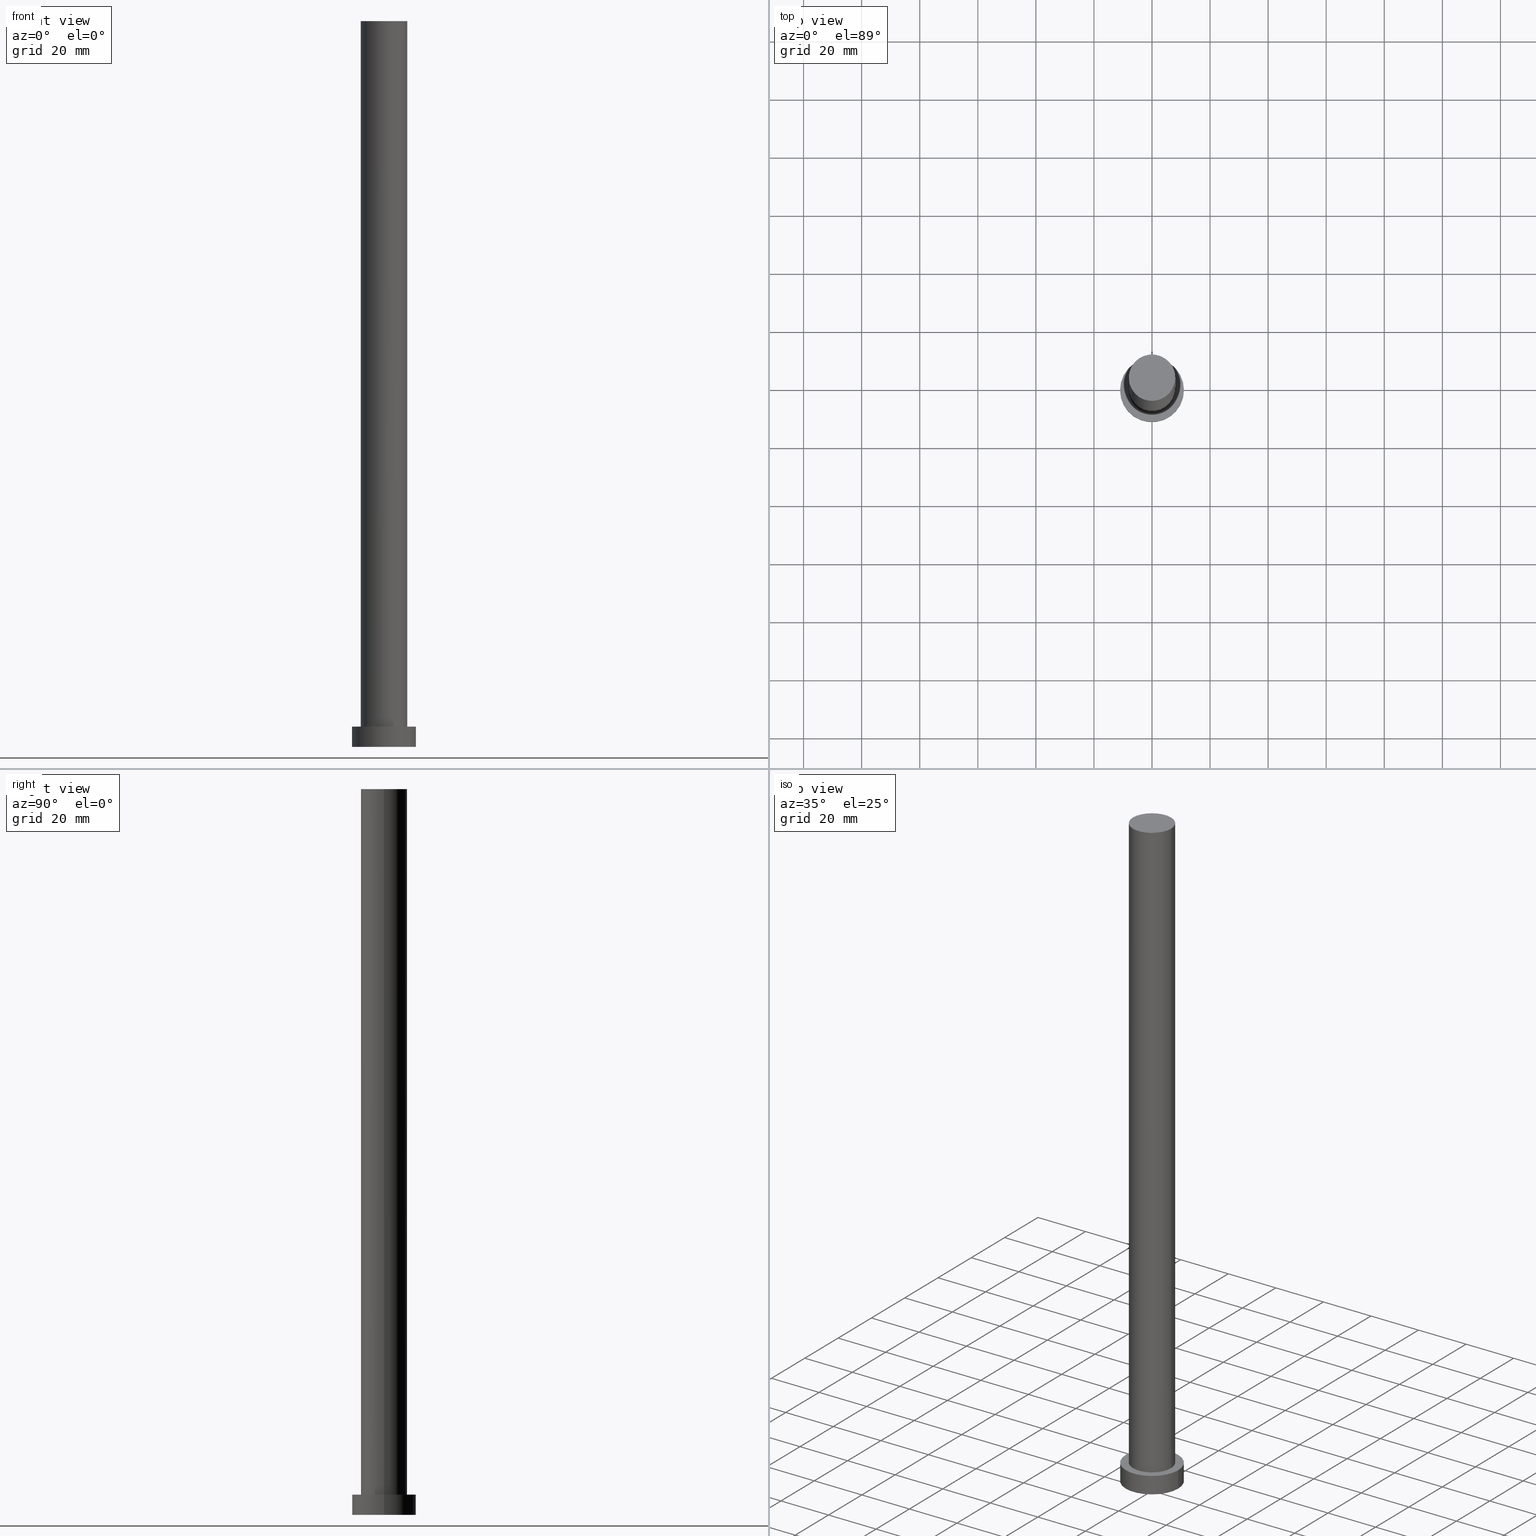
[diagram: canonical four-view strip — front | top / right | iso, engineering-drawing reading convention]
A machine part, canonical four-view strip (front | top / right | iso — engineering-drawing reading convention). The complete STEP part file that produces these views, byte-faithful:
ISO-10303-21;
HEADER;
FILE_DESCRIPTION (( 'STEP AP203' ),
    '1' );
FILE_NAME ('9fd9.STEP',
    '2023-02-13T09:46:42',
    ( '' ),
    ( '' ),
    'SwSTEP 2.0',
    'SolidWorks 2019',
    '' );
FILE_SCHEMA (( 'CONFIG_CONTROL_DESIGN' ));
ENDSEC;

DATA;
#1 = AXIS2_PLACEMENT_3D ( 'NONE', #224, #156, #229 ) ;
#2 = EDGE_CURVE ( 'NONE', #60, #253, #199, .T. ) ;
#3 = ORIENTED_EDGE ( 'NONE', *, *, #142, .F. ) ;
#4 = DIRECTION ( 'NONE',  ( -0.000000000000000000, -0.000000000000000000, -1.000000000000000000 ) ) ;
#5 = CARTESIAN_POINT ( 'NONE',  ( -8.000000000000000000, 0.000000000000000000, 250.0000000000000000 ) ) ;
#6 = CYLINDRICAL_SURFACE ( 'NONE', #173, 11.00000000000000000 ) ;
#7 = PERSON_AND_ORGANIZATION_ROLE ( 'classification_officer' ) ;
#8 = DIRECTION ( 'NONE',  ( 0.000000000000000000, 0.000000000000000000, 1.000000000000000000 ) ) ;
#9 = CIRCLE ( 'NONE', #163, 8.000000000000000000 ) ;
#10 = CARTESIAN_POINT ( 'NONE',  ( 0.000000000000000000, 0.000000000000000000, 7.000000000000000000 ) ) ;
#11 = CC_DESIGN_DATE_AND_TIME_ASSIGNMENT ( #215, #195, ( #19 ) ) ;
#12 = AXIS2_PLACEMENT_3D ( 'NONE', #73, #13, #93 ) ;
#13 = DIRECTION ( 'NONE',  ( -0.000000000000000000, -0.000000000000000000, -1.000000000000000000 ) ) ;
#14 = PERSON_AND_ORGANIZATION ( #255, #113 ) ;
#15 = ADVANCED_FACE ( 'NONE', ( #84 ), #82, .T. ) ;
#16 = APPROVAL_DATE_TIME ( #121, #112 ) ;
#17 = DIRECTION ( 'NONE',  ( -1.000000000000000000, 0.000000000000000000, 0.000000000000000000 ) ) ;
#18 = DATE_TIME_ROLE ( 'creation_date' ) ;
#19 = SECURITY_CLASSIFICATION ( '', '', #183 ) ;
#20 = ORIENTED_EDGE ( 'NONE', *, *, #170, .F. ) ;
#21 = CC_DESIGN_PERSON_AND_ORGANIZATION_ASSIGNMENT ( #137, #40, ( #133 ) ) ;
#22 = ORIENTED_EDGE ( 'NONE', *, *, #47, .T. ) ;
#23 = CARTESIAN_POINT ( 'NONE',  ( 0.000000000000000000, 0.000000000000000000, 0.000000000000000000 ) ) ;
#24 = CIRCLE ( 'NONE', #168, 11.00000000000000000 ) ;
#25 = EDGE_LOOP ( 'NONE', ( #38, #58, #162, #101 ) ) ;
#26 = DATE_AND_TIME ( #83, #74 ) ;
#27 = CARTESIAN_POINT ( 'NONE',  ( 0.000000000000000000, 0.000000000000000000, 250.0000000000000000 ) ) ;
#28 = EDGE_CURVE ( 'NONE', #105, #124, #9, .T. ) ;
#29 = CARTESIAN_POINT ( 'NONE',  ( 0.000000000000000000, 0.000000000000000000, 250.0000000000000000 ) ) ;
#30 = ORIENTED_EDGE ( 'NONE', *, *, #80, .T. ) ;
#31 = DIRECTION ( 'NONE',  ( 1.000000000000000000, 0.000000000000000000, 0.000000000000000000 ) ) ;
#32 = PRODUCT_DEFINITION_FORMATION_WITH_SPECIFIED_SOURCE ( 'LIBOVOLN�', '', #133, .NOT_KNOWN. ) ;
#33 = PLANE ( 'NONE',  #79 ) ;
#34 =( GEOMETRIC_REPRESENTATION_CONTEXT ( 3 ) GLOBAL_UNCERTAINTY_ASSIGNED_CONTEXT ( ( #44 ) ) GLOBAL_UNIT_ASSIGNED_CONTEXT ( ( #67, #72, #192 ) ) REPRESENTATION_CONTEXT ( 'NONE', 'WORKASPACE' ) );
#35 = FACE_OUTER_BOUND ( 'NONE', #61, .T. ) ;
#36 = PRODUCT_RELATED_PRODUCT_CATEGORY ( 'detail', '', ( #133 ) ) ;
#37 = APPROVAL_ROLE ( '' ) ;
#38 = ORIENTED_EDGE ( 'NONE', *, *, #96, .F. ) ;
#39 = DESIGN_CONTEXT ( 'detailed design', #205, 'design' ) ;
#40 = PERSON_AND_ORGANIZATION_ROLE ( 'design_owner' ) ;
#41 = VERTEX_POINT ( 'NONE', #178 ) ;
#42 = ORIENTED_EDGE ( 'NONE', *, *, #172, .F. ) ;
#43 = EDGE_LOOP ( 'NONE', ( #160, #140 ) ) ;
#44 = UNCERTAINTY_MEASURE_WITH_UNIT (LENGTH_MEASURE( 1.000000000000000082E-05 ), #67, 'distance_accuracy_value', 'NONE');
#45 = CARTESIAN_POINT ( 'NONE',  ( -8.000000000000000000, 0.000000000000000000, 250.0000000000000000 ) ) ;
#46 = CARTESIAN_POINT ( 'NONE',  ( 0.000000000000000000, 0.000000000000000000, 250.0000000000000000 ) ) ;
#47 = EDGE_CURVE ( 'NONE', #131, #60, #24, .T. ) ;
#48 = DIRECTION ( 'NONE',  ( -0.000000000000000000, -0.000000000000000000, -1.000000000000000000 ) ) ;
#49 = AXIS2_PLACEMENT_3D ( 'NONE', #29, #128, #197 ) ;
#50 = CARTESIAN_POINT ( 'NONE',  ( 11.00000000000000000, 1.347111479062088405E-15, 7.000000000000000000 ) ) ;
#51 = EDGE_CURVE ( 'NONE', #41, #100, #59, .T. ) ;
#52 = LOCAL_TIME ( 10, 46, 42.00000000000000000, #129 ) ;
#53 = CARTESIAN_POINT ( 'NONE',  ( -11.00000000000000000, 0.000000000000000000, 0.000000000000000000 ) ) ;
#54 = PRODUCT_DEFINITION ( 'NEZN�M�', '', #32, #39 ) ;
#55 = DIRECTION ( 'NONE',  ( 1.000000000000000000, 0.000000000000000000, 0.000000000000000000 ) ) ;
#56 = APPLICATION_PROTOCOL_DEFINITION ( 'international standard', 'config_control_design', 1994, #90 ) ;
#57 = CALENDAR_DATE ( 2023, 13, 2 ) ;
#58 = ORIENTED_EDGE ( 'NONE', *, *, #28, .F. ) ;
#59 = CIRCLE ( 'NONE', #193, 8.000000000000000000 ) ;
#60 = VERTEX_POINT ( 'NONE', #66 ) ;
#61 = EDGE_LOOP ( 'NONE', ( #78, #22 ) ) ;
#62 = CC_DESIGN_APPROVAL ( #161, ( #32 ) ) ;
#63 = ORIENTED_EDGE ( 'NONE', *, *, #91, .F. ) ;
#64 = CARTESIAN_POINT ( 'NONE',  ( 0.000000000000000000, 0.000000000000000000, 0.000000000000000000 ) ) ;
#65 = CC_DESIGN_PERSON_AND_ORGANIZATION_ASSIGNMENT ( #201, #241, ( #32 ) ) ;
#66 = CARTESIAN_POINT ( 'NONE',  ( -11.00000000000000000, 0.000000000000000000, 7.000000000000000000 ) ) ;
#67 =( LENGTH_UNIT ( ) NAMED_UNIT ( * ) SI_UNIT ( .MILLI., .METRE. ) );
#68 = DIRECTION ( 'NONE',  ( 0.000000000000000000, 0.000000000000000000, 1.000000000000000000 ) ) ;
#69 = CALENDAR_DATE ( 2023, 13, 2 ) ;
#70 = CARTESIAN_POINT ( 'NONE',  ( 0.000000000000000000, 0.000000000000000000, 7.000000000000000000 ) ) ;
#71 = FACE_OUTER_BOUND ( 'NONE', #244, .T. ) ;
#72 =( NAMED_UNIT ( * ) PLANE_ANGLE_UNIT ( ) SI_UNIT ( $, .RADIAN. ) );
#73 = CARTESIAN_POINT ( 'NONE',  ( 0.000000000000000000, 0.000000000000000000, 250.0000000000000000 ) ) ;
#74 = LOCAL_TIME ( 10, 46, 42.00000000000000000, #81 ) ;
#75 = AXIS2_PLACEMENT_3D ( 'NONE', #23, #186, #55 ) ;
#76 = CALENDAR_DATE ( 2023, 13, 2 ) ;
#77 = EDGE_LOOP ( 'NONE', ( #42, #20 ) ) ;
#78 = ORIENTED_EDGE ( 'NONE', *, *, #165, .T. ) ;
#79 = AXIS2_PLACEMENT_3D ( 'NONE', #248, #89, #231 ) ;
#80 = EDGE_CURVE ( 'NONE', #124, #105, #176, .T. ) ;
#81 = COORDINATED_UNIVERSAL_TIME_OFFSET ( 1, 0, .AHEAD. ) ;
#82 = PLANE ( 'NONE',  #49 ) ;
#83 = CALENDAR_DATE ( 2023, 13, 2 ) ;
#84 = FACE_OUTER_BOUND ( 'NONE', #213, .T. ) ;
#85 = APPROVAL_DATE_TIME ( #141, #161 ) ;
#86 = AXIS2_PLACEMENT_3D ( 'NONE', #184, #68, #171 ) ;
#87 = DIRECTION ( 'NONE',  ( 1.000000000000000000, 0.000000000000000000, 0.000000000000000000 ) ) ;
#88 = CARTESIAN_POINT ( 'NONE',  ( 0.000000000000000000, 0.000000000000000000, 0.000000000000000000 ) ) ;
#89 = DIRECTION ( 'NONE',  ( 0.000000000000000000, 0.000000000000000000, 1.000000000000000000 ) ) ;
#90 = APPLICATION_CONTEXT ( 'configuration controlled 3d designs of mechanical parts and assemblies' ) ;
#91 = EDGE_CURVE ( 'NONE', #131, #143, #182, .T. ) ;
#92 = VECTOR ( 'NONE', #153, 1000.000000000000000 ) ;
#93 = DIRECTION ( 'NONE',  ( -1.000000000000000000, 0.000000000000000000, 0.000000000000000000 ) ) ;
#94 = CARTESIAN_POINT ( 'NONE',  ( 0.000000000000000000, 0.000000000000000000, 7.000000000000000000 ) ) ;
#95 = PERSON_AND_ORGANIZATION_ROLE ( 'creator' ) ;
#96 = EDGE_CURVE ( 'NONE', #124, #41, #109, .T. ) ;
#97 = CIRCLE ( 'NONE', #237, 11.00000000000000000 ) ;
#98 = APPROVAL_ROLE ( '' ) ;
#99 = EDGE_LOOP ( 'NONE', ( #175, #236, #158, #3 ) ) ;
#100 = VERTEX_POINT ( 'NONE', #181 ) ;
#101 = ORIENTED_EDGE ( 'NONE', *, *, #208, .T. ) ;
#102 = APPROVAL_PERSON_ORGANIZATION ( #122, #161, #98 ) ;
#103 = ORIENTED_EDGE ( 'NONE', *, *, #170, .T. ) ;
#104 = PERSON_AND_ORGANIZATION ( #255, #113 ) ;
#105 = VERTEX_POINT ( 'NONE', #5 ) ;
#106 = ADVANCED_FACE ( 'NONE', ( #239 ), #6, .T. ) ;
#107 = DIRECTION ( 'NONE',  ( 1.000000000000000000, 0.000000000000000000, 0.000000000000000000 ) ) ;
#108 = CC_DESIGN_SECURITY_CLASSIFICATION ( #19, ( #32 ) ) ;
#109 = LINE ( 'NONE', #114, #202 ) ;
#110 = DIRECTION ( 'NONE',  ( -0.000000000000000000, -0.000000000000000000, -1.000000000000000000 ) ) ;
#111 = DIRECTION ( 'NONE',  ( 0.000000000000000000, 0.000000000000000000, 1.000000000000000000 ) ) ;
#112 = APPROVAL ( #119, 'NEUR�EN�' ) ;
#113 = ORGANIZATION ( 'NEUR�EN�', 'NEUR�EN�', '' ) ;
#114 = CARTESIAN_POINT ( 'NONE',  ( 8.000000000000000000, 9.797174393178825657E-16, 250.0000000000000000 ) ) ;
#115 = DIRECTION ( 'NONE',  ( 1.000000000000000000, 0.000000000000000000, 0.000000000000000000 ) ) ;
#116 = VECTOR ( 'NONE', #110, 1000.000000000000000 ) ;
#117 = APPLICATION_PROTOCOL_DEFINITION ( 'international standard', 'config_control_design', 1994, #205 ) ;
#118 = CYLINDRICAL_SURFACE ( 'NONE', #185, 11.00000000000000000 ) ;
#119 = APPROVAL_STATUS ( 'not_yet_approved' ) ;
#120 = FACE_BOUND ( 'NONE', #43, .T. ) ;
#121 = DATE_AND_TIME ( #139, #150 ) ;
#122 = PERSON_AND_ORGANIZATION ( #255, #113 ) ;
#123 = ORIENTED_EDGE ( 'NONE', *, *, #2, .F. ) ;
#124 = VERTEX_POINT ( 'NONE', #167 ) ;
#125 = ORIENTED_EDGE ( 'NONE', *, *, #91, .T. ) ;
#126 = CC_DESIGN_DATE_AND_TIME_ASSIGNMENT ( #157, #18, ( #54 ) ) ;
#127 = DIRECTION ( 'NONE',  ( 1.000000000000000000, 0.000000000000000000, 0.000000000000000000 ) ) ;
#128 = DIRECTION ( 'NONE',  ( 0.000000000000000000, 0.000000000000000000, 1.000000000000000000 ) ) ;
#129 = COORDINATED_UNIVERSAL_TIME_OFFSET ( 1, 0, .AHEAD. ) ;
#130 = AXIS2_PLACEMENT_3D ( 'NONE', #155, #135, #115 ) ;
#131 = VERTEX_POINT ( 'NONE', #50 ) ;
#132 = DIRECTION ( 'NONE',  ( 0.000000000000000000, 0.000000000000000000, 1.000000000000000000 ) ) ;
#133 = PRODUCT ( '9fd9', '9fd9', '', ( #210 ) ) ;
#134 = APPROVAL_PERSON_ORGANIZATION ( #14, #112, #37 ) ;
#135 = DIRECTION ( 'NONE',  ( 0.000000000000000000, 0.000000000000000000, 1.000000000000000000 ) ) ;
#136 = MANIFOLD_SOLID_BREP ( 'P�idat vysunut�m3', #146 ) ;
#137 = PERSON_AND_ORGANIZATION ( #255, #113 ) ;
#138 = CC_DESIGN_PERSON_AND_ORGANIZATION_ASSIGNMENT ( #189, #95, ( #54 ) ) ;
#139 = CALENDAR_DATE ( 2023, 13, 2 ) ;
#140 = ORIENTED_EDGE ( 'NONE', *, *, #51, .F. ) ;
#141 = DATE_AND_TIME ( #57, #242 ) ;
#142 = EDGE_CURVE ( 'NONE', #105, #100, #216, .T. ) ;
#143 = VERTEX_POINT ( 'NONE', #240 ) ;
#144 = PRODUCT_DEFINITION_SHAPE ( 'NONE', 'NONE',  #54 ) ;
#145 = ORIENTED_EDGE ( 'NONE', *, *, #165, .F. ) ;
#146 = CLOSED_SHELL ( 'NONE', ( #180, #228, #106, #222, #211, #235, #15 ) ) ;
#147 = DIRECTION ( 'NONE',  ( 0.000000000000000000, 0.000000000000000000, 1.000000000000000000 ) ) ;
#148 = CYLINDRICAL_SURFACE ( 'NONE', #12, 8.000000000000000000 ) ;
#149 = DIRECTION ( 'NONE',  ( 1.000000000000000000, 0.000000000000000000, 0.000000000000000000 ) ) ;
#150 = LOCAL_TIME ( 10, 46, 42.00000000000000000, #187 ) ;
#151 = DIRECTION ( 'NONE',  ( 0.000000000000000000, 0.000000000000000000, 1.000000000000000000 ) ) ;
#152 = APPROVAL_ROLE ( '' ) ;
#153 = DIRECTION ( 'NONE',  ( -0.000000000000000000, -0.000000000000000000, -1.000000000000000000 ) ) ;
#154 = CYLINDRICAL_SURFACE ( 'NONE', #1, 8.000000000000000000 ) ;
#155 = CARTESIAN_POINT ( 'NONE',  ( 0.000000000000000000, 0.000000000000000000, 7.000000000000000000 ) ) ;
#156 = DIRECTION ( 'NONE',  ( -0.000000000000000000, -0.000000000000000000, -1.000000000000000000 ) ) ;
#157 = DATE_AND_TIME ( #76, #247 ) ;
#158 = ORIENTED_EDGE ( 'NONE', *, *, #51, .T. ) ;
#159 = CIRCLE ( 'NONE', #130, 8.000000000000000000 ) ;
#160 = ORIENTED_EDGE ( 'NONE', *, *, #208, .F. ) ;
#161 = APPROVAL ( #232, 'NEUR�EN�' ) ;
#162 = ORIENTED_EDGE ( 'NONE', *, *, #142, .T. ) ;
#163 = AXIS2_PLACEMENT_3D ( 'NONE', #27, #8, #107 ) ;
#164 = DIRECTION ( 'NONE',  ( 0.000000000000000000, 0.000000000000000000, 1.000000000000000000 ) ) ;
#165 = EDGE_CURVE ( 'NONE', #60, #131, #226, .T. ) ;
#166 = PERSON_AND_ORGANIZATION ( #255, #113 ) ;
#167 = CARTESIAN_POINT ( 'NONE',  ( 8.000000000000000000, 9.797174393178825657E-16, 250.0000000000000000 ) ) ;
#168 = AXIS2_PLACEMENT_3D ( 'NONE', #200, #147, #87 ) ;
#169 = DIRECTION ( 'NONE',  ( -0.000000000000000000, -0.000000000000000000, -1.000000000000000000 ) ) ;
#170 = EDGE_CURVE ( 'NONE', #143, #253, #97, .T. ) ;
#171 = DIRECTION ( 'NONE',  ( 1.000000000000000000, 0.000000000000000000, 0.000000000000000000 ) ) ;
#172 = EDGE_CURVE ( 'NONE', #253, #143, #251, .T. ) ;
#173 = AXIS2_PLACEMENT_3D ( 'NONE', #70, #48, #220 ) ;
#174 = COORDINATED_UNIVERSAL_TIME_OFFSET ( 1, 0, .AHEAD. ) ;
#175 = ORIENTED_EDGE ( 'NONE', *, *, #80, .F. ) ;
#176 = CIRCLE ( 'NONE', #198, 8.000000000000000000 ) ;
#177 = ORIENTED_EDGE ( 'NONE', *, *, #47, .F. ) ;
#178 = CARTESIAN_POINT ( 'NONE',  ( 8.000000000000000000, 9.797174393178825657E-16, 7.000000000000000000 ) ) ;
#179 = VECTOR ( 'NONE', #4, 1000.000000000000000 ) ;
#180 = ADVANCED_FACE ( 'NONE', ( #194 ), #148, .T. ) ;
#181 = CARTESIAN_POINT ( 'NONE',  ( -8.000000000000000000, 0.000000000000000000, 7.000000000000000000 ) ) ;
#182 = LINE ( 'NONE', #218, #116 ) ;
#183 = SECURITY_CLASSIFICATION_LEVEL ( 'unclassified' ) ;
#184 = CARTESIAN_POINT ( 'NONE',  ( 0.000000000000000000, 0.000000000000000000, 7.000000000000000000 ) ) ;
#185 = AXIS2_PLACEMENT_3D ( 'NONE', #94, #188, #17 ) ;
#186 = DIRECTION ( 'NONE',  ( 0.000000000000000000, 0.000000000000000000, 1.000000000000000000 ) ) ;
#187 = COORDINATED_UNIVERSAL_TIME_OFFSET ( 1, 0, .AHEAD. ) ;
#188 = DIRECTION ( 'NONE',  ( -0.000000000000000000, -0.000000000000000000, -1.000000000000000000 ) ) ;
#189 = PERSON_AND_ORGANIZATION ( #255, #113 ) ;
#190 = APPROVAL_PERSON_ORGANIZATION ( #166, #246, #152 ) ;
#191 = ORIENTED_EDGE ( 'NONE', *, *, #172, .T. ) ;
#192 =( NAMED_UNIT ( * ) SI_UNIT ( $, .STERADIAN. ) SOLID_ANGLE_UNIT ( ) );
#193 = AXIS2_PLACEMENT_3D ( 'NONE', #10, #164, #217 ) ;
#194 = FACE_OUTER_BOUND ( 'NONE', #99, .T. ) ;
#195 = DATE_TIME_ROLE ( 'classification_date' ) ;
#196 = CC_DESIGN_PERSON_AND_ORGANIZATION_ASSIGNMENT ( #225, #221, ( #32 ) ) ;
#197 = DIRECTION ( 'NONE',  ( 1.000000000000000000, 0.000000000000000000, -0.000000000000000000 ) ) ;
#198 = AXIS2_PLACEMENT_3D ( 'NONE', #46, #111, #149 ) ;
#199 = LINE ( 'NONE', #223, #179 ) ;
#200 = CARTESIAN_POINT ( 'NONE',  ( 0.000000000000000000, 0.000000000000000000, 7.000000000000000000 ) ) ;
#201 = PERSON_AND_ORGANIZATION ( #255, #113 ) ;
#202 = VECTOR ( 'NONE', #169, 1000.000000000000000 ) ;
#203 = DIRECTION ( 'NONE',  ( 0.000000000000000000, 0.000000000000000000, 1.000000000000000000 ) ) ;
#204 = ADVANCED_BREP_SHAPE_REPRESENTATION ( '9fd9', ( #136, #75 ), #34 ) ;
#205 = APPLICATION_CONTEXT ( 'configuration controlled 3d designs of mechanical parts and assemblies' ) ;
#206 = CC_DESIGN_APPROVAL ( #112, ( #54 ) ) ;
#207 = CARTESIAN_POINT ( 'NONE',  ( 0.000000000000000000, 0.000000000000000000, 0.000000000000000000 ) ) ;
#208 = EDGE_CURVE ( 'NONE', #100, #41, #159, .T. ) ;
#209 = CC_DESIGN_APPROVAL ( #246, ( #19 ) ) ;
#210 = MECHANICAL_CONTEXT ( 'NONE', #90, 'mechanical' ) ;
#211 = ADVANCED_FACE ( 'NONE', ( #230 ), #249, .F. ) ;
#212 = ORIENTED_EDGE ( 'NONE', *, *, #2, .T. ) ;
#213 = EDGE_LOOP ( 'NONE', ( #234, #30 ) ) ;
#214 = AXIS2_PLACEMENT_3D ( 'NONE', #207, #203, #227 ) ;
#215 = DATE_AND_TIME ( #69, #52 ) ;
#216 = LINE ( 'NONE', #45, #92 ) ;
#217 = DIRECTION ( 'NONE',  ( 1.000000000000000000, 0.000000000000000000, 0.000000000000000000 ) ) ;
#218 = CARTESIAN_POINT ( 'NONE',  ( 11.00000000000000000, 1.347111479062088405E-15, 7.000000000000000000 ) ) ;
#219 = SHAPE_DEFINITION_REPRESENTATION ( #144, #204 ) ;
#220 = DIRECTION ( 'NONE',  ( -1.000000000000000000, 0.000000000000000000, 0.000000000000000000 ) ) ;
#221 = PERSON_AND_ORGANIZATION_ROLE ( 'design_supplier' ) ;
#222 = ADVANCED_FACE ( 'NONE', ( #120, #35 ), #33, .T. ) ;
#223 = CARTESIAN_POINT ( 'NONE',  ( -11.00000000000000000, 0.000000000000000000, 7.000000000000000000 ) ) ;
#224 = CARTESIAN_POINT ( 'NONE',  ( 0.000000000000000000, 0.000000000000000000, 250.0000000000000000 ) ) ;
#225 = PERSON_AND_ORGANIZATION ( #255, #113 ) ;
#226 = CIRCLE ( 'NONE', #86, 11.00000000000000000 ) ;
#227 = DIRECTION ( 'NONE',  ( 1.000000000000000000, 0.000000000000000000, -0.000000000000000000 ) ) ;
#228 = ADVANCED_FACE ( 'NONE', ( #71 ), #118, .T. ) ;
#229 = DIRECTION ( 'NONE',  ( -1.000000000000000000, 0.000000000000000000, 0.000000000000000000 ) ) ;
#230 = FACE_OUTER_BOUND ( 'NONE', #77, .T. ) ;
#231 = DIRECTION ( 'NONE',  ( 1.000000000000000000, 0.000000000000000000, -0.000000000000000000 ) ) ;
#232 = APPROVAL_STATUS ( 'not_yet_approved' ) ;
#233 = AXIS2_PLACEMENT_3D ( 'NONE', #88, #151, #127 ) ;
#234 = ORIENTED_EDGE ( 'NONE', *, *, #28, .T. ) ;
#235 = ADVANCED_FACE ( 'NONE', ( #245 ), #154, .T. ) ;
#236 = ORIENTED_EDGE ( 'NONE', *, *, #96, .T. ) ;
#237 = AXIS2_PLACEMENT_3D ( 'NONE', #64, #132, #31 ) ;
#238 = APPROVAL_DATE_TIME ( #26, #246 ) ;
#239 = FACE_OUTER_BOUND ( 'NONE', #252, .T. ) ;
#240 = CARTESIAN_POINT ( 'NONE',  ( 11.00000000000000000, 1.347111479062088405E-15, 0.000000000000000000 ) ) ;
#241 = PERSON_AND_ORGANIZATION_ROLE ( 'creator' ) ;
#242 = LOCAL_TIME ( 10, 46, 42.00000000000000000, #174 ) ;
#243 = APPROVAL_STATUS ( 'not_yet_approved' ) ;
#244 = EDGE_LOOP ( 'NONE', ( #177, #125, #103, #123 ) ) ;
#245 = FACE_OUTER_BOUND ( 'NONE', #25, .T. ) ;
#246 = APPROVAL ( #243, 'NEUR�EN�' ) ;
#247 = LOCAL_TIME ( 10, 46, 42.00000000000000000, #250 ) ;
#248 = CARTESIAN_POINT ( 'NONE',  ( 0.000000000000000000, 0.000000000000000000, 7.000000000000000000 ) ) ;
#249 = PLANE ( 'NONE',  #214 ) ;
#250 = COORDINATED_UNIVERSAL_TIME_OFFSET ( 1, 0, .AHEAD. ) ;
#251 = CIRCLE ( 'NONE', #233, 11.00000000000000000 ) ;
#252 = EDGE_LOOP ( 'NONE', ( #63, #145, #212, #191 ) ) ;
#253 = VERTEX_POINT ( 'NONE', #53 ) ;
#254 = CC_DESIGN_PERSON_AND_ORGANIZATION_ASSIGNMENT ( #104, #7, ( #19 ) ) ;
#255 = PERSON ( 'NEUR�EN�', 'NEUR�EN�', 'NEUR�EN�', ('NEUR�EN�'), ('NEUR�EN�'), ('NEUR�EN�') ) ;
ENDSEC;
END-ISO-10303-21;
